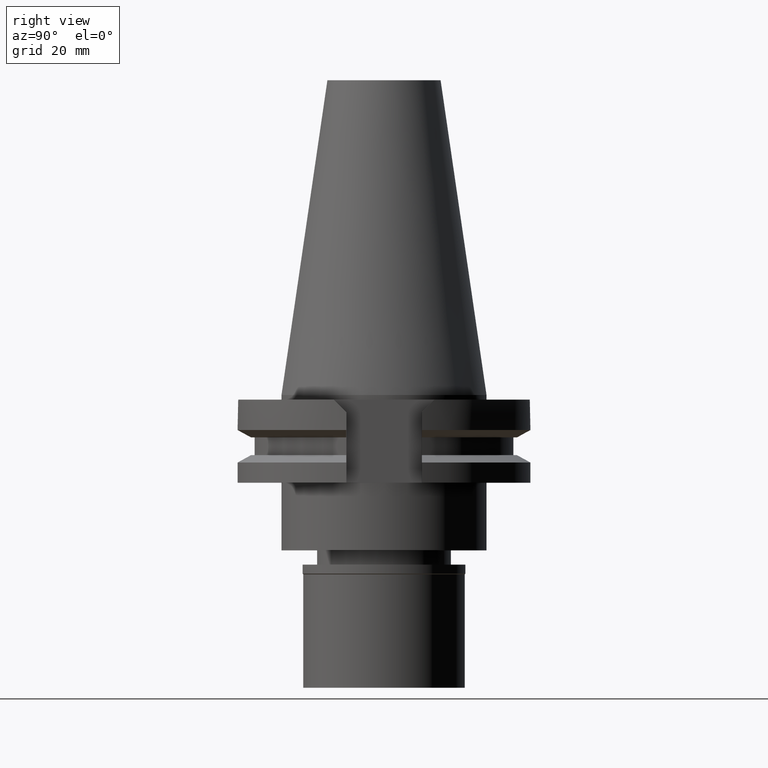
[diagram: clean part render]
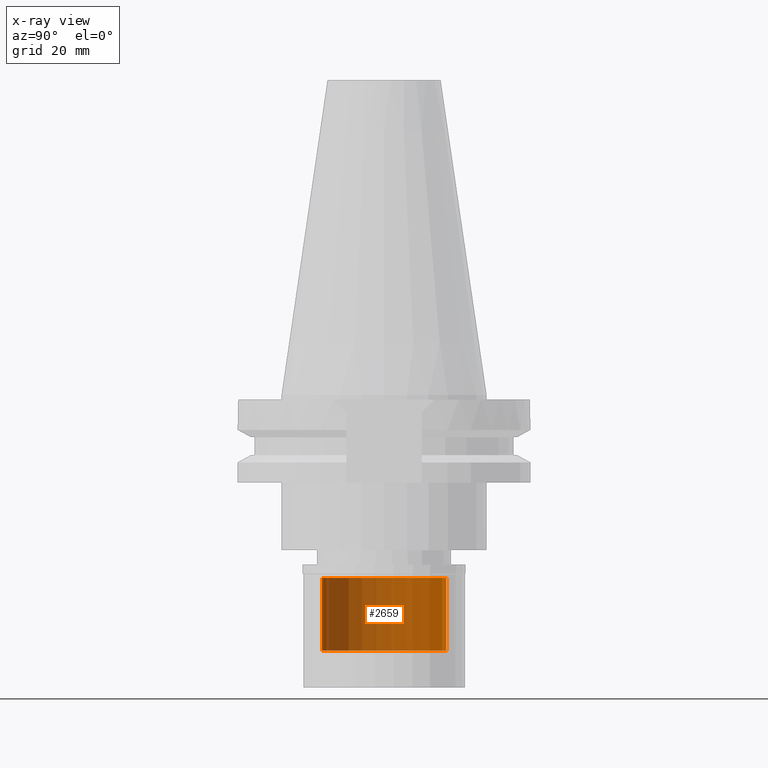
[diagram: x-ray — body ghosted, one internal face saturated and labeled with its STEP entity id]
A machine part, right view, then the same camera in x-ray: the body is ghosted and one INTERNAL B-rep face — a face not visible from any outside direction — is saturated and labeled: STEP entity #2659.
In plain terms, the highlighted cylindrical surface (partial cylindrical patch) has radius 13.5 mm, axis along (0, 0, -1).
Its self-contained STEP definition (entity closure, byte-faithful):
#54 = ORIENTED_EDGE ( 'NONE', *, *, #1129, .T. ) ;
#58 = DIRECTION ( 'NONE',  ( 0.0000000000000000000, 0.0000000000000000000, -1.000000000000000000 ) ) ;
#217 = CYLINDRICAL_SURFACE ( 'NONE', #954, 13.50000000000000000 ) ;
#229 = LINE ( 'NONE', #1199, #743 ) ;
#306 = CARTESIAN_POINT ( 'NONE',  ( 0.0000000000000000000, 0.0000000000000000000, -18.70000000000000284 ) ) ;
#311 = VERTEX_POINT ( 'NONE', #1023 ) ;
#580 = VERTEX_POINT ( 'NONE', #2544 ) ;
#743 = VECTOR ( 'NONE', #2606, 1000.000000000000000 ) ;
#830 = CIRCLE ( 'NONE', #1286, 13.50000000000000000 ) ;
#832 = VECTOR ( 'NONE', #3064, 1000.000000000000000 ) ;
#900 = EDGE_LOOP ( 'NONE', ( #2775, #1091, #54, #2750 ) ) ;
#911 = EDGE_CURVE ( 'NONE', #311, #3043, #229, .T. ) ;
#935 = EDGE_CURVE ( 'NONE', #580, #3043, #2203, .T. ) ;
#954 = AXIS2_PLACEMENT_3D ( 'NONE', #2854, #1650, #1188 ) ;
#1023 = CARTESIAN_POINT ( 'NONE',  ( 0.0000000000000000000, -13.50000000000000000, -18.70000000000000284 ) ) ;
#1091 = ORIENTED_EDGE ( 'NONE', *, *, #911, .F. ) ;
#1129 = EDGE_CURVE ( 'NONE', #311, #1996, #830, .T. ) ;
#1188 = DIRECTION ( 'NONE',  ( 0.0000000000000000000, -1.000000000000000000, 0.0000000000000000000 ) ) ;
#1199 = CARTESIAN_POINT ( 'NONE',  ( 0.0000000000000000000, -13.50000000000000000, -18.70000000000000284 ) ) ;
#1286 = AXIS2_PLACEMENT_3D ( 'NONE', #306, #58, #2239 ) ;
#1579 = CARTESIAN_POINT ( 'NONE',  ( 0.0000000000000000000, 13.50000000000000000, -18.70000000000000284 ) ) ;
#1635 = EDGE_CURVE ( 'NONE', #1996, #580, #2566, .T. ) ;
#1650 = DIRECTION ( 'NONE',  ( 0.0000000000000000000, 0.0000000000000000000, -1.000000000000000000 ) ) ;
#1880 = DIRECTION ( 'NONE',  ( 0.0000000000000000000, 1.000000000000000000, 0.0000000000000000000 ) ) ;
#1996 = VERTEX_POINT ( 'NONE', #1579 ) ;
#2140 = DIRECTION ( 'NONE',  ( 0.0000000000000000000, 0.0000000000000000000, 1.000000000000000000 ) ) ;
#2203 = CIRCLE ( 'NONE', #2763, 13.50000000000000000 ) ;
#2239 = DIRECTION ( 'NONE',  ( 0.0000000000000000000, -1.000000000000000000, 0.0000000000000000000 ) ) ;
#2384 = CARTESIAN_POINT ( 'NONE',  ( 0.0000000000000000000, 13.50000000000000000, -18.70000000000000284 ) ) ;
#2544 = CARTESIAN_POINT ( 'NONE',  ( 0.0000000000000000000, 13.50000000000000000, -2.899999999999999911 ) ) ;
#2566 = LINE ( 'NONE', #2384, #832 ) ;
#2606 = DIRECTION ( 'NONE',  ( 0.0000000000000000000, 0.0000000000000000000, 1.000000000000000000 ) ) ;
#2659 = ADVANCED_FACE ( 'NONE', ( #3092 ), #217, .F. ) ;
#2750 = ORIENTED_EDGE ( 'NONE', *, *, #1635, .T. ) ;
#2756 = CARTESIAN_POINT ( 'NONE',  ( 0.0000000000000000000, -13.50000000000000000, -2.899999999999999911 ) ) ;
#2763 = AXIS2_PLACEMENT_3D ( 'NONE', #3074, #2140, #1880 ) ;
#2775 = ORIENTED_EDGE ( 'NONE', *, *, #935, .T. ) ;
#2854 = CARTESIAN_POINT ( 'NONE',  ( 0.0000000000000000000, 0.0000000000000000000, 0.0000000000000000000 ) ) ;
#3043 = VERTEX_POINT ( 'NONE', #2756 ) ;
#3064 = DIRECTION ( 'NONE',  ( 0.0000000000000000000, 0.0000000000000000000, 1.000000000000000000 ) ) ;
#3074 = CARTESIAN_POINT ( 'NONE',  ( 0.0000000000000000000, 0.0000000000000000000, -2.899999999999999911 ) ) ;
#3092 = FACE_OUTER_BOUND ( 'NONE', #900, .T. ) ;